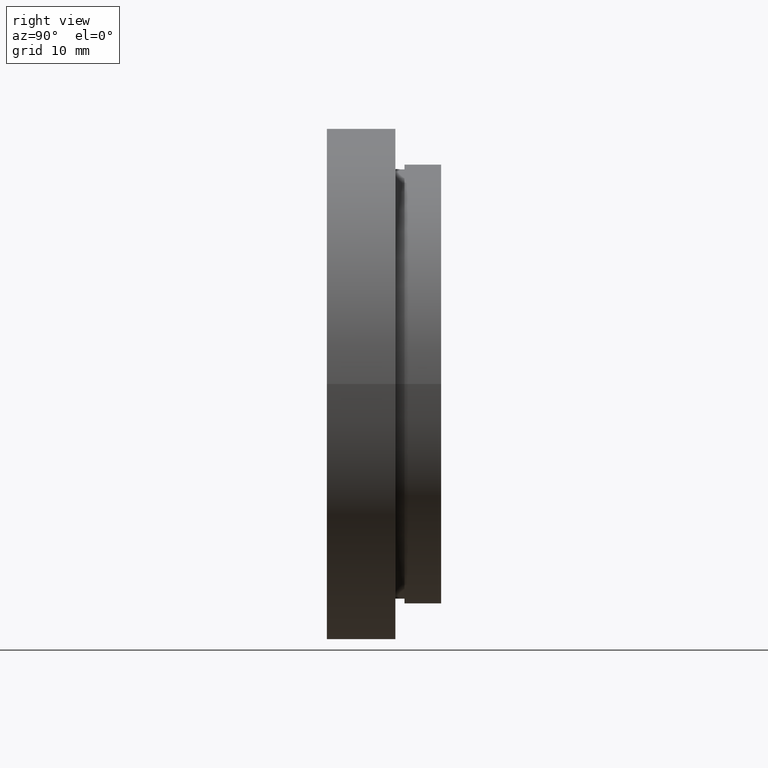
[diagram: clean part render]
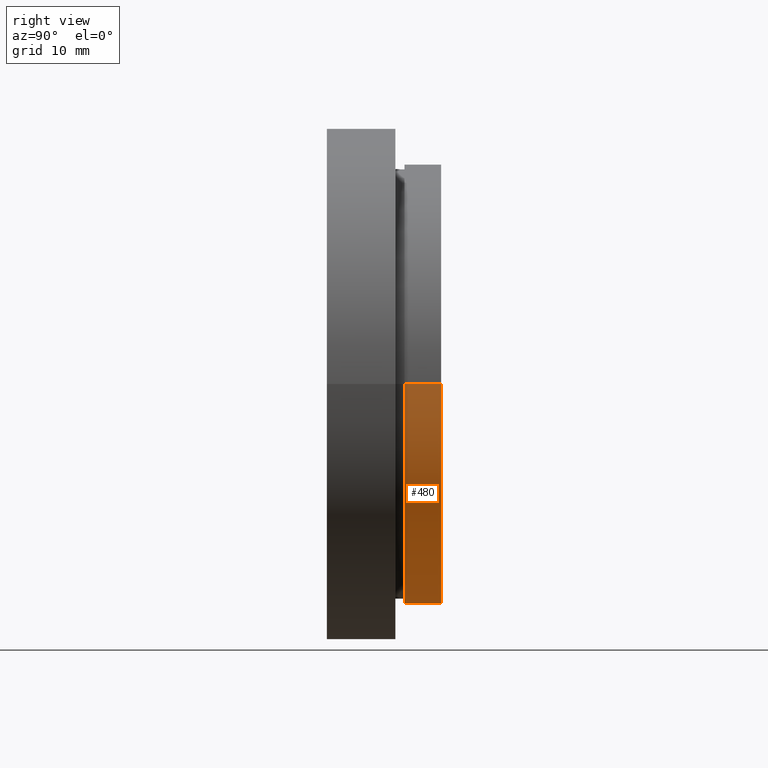
[diagram: same view with one face highlighted and labeled with its STEP entity id]
A machine part, right view. The second image highlights one B-rep face of the part: STEP entity #480.
In plain terms, the highlighted cylindrical surface (partial cylindrical patch) has radius 24.01 mm, axis along (-0, 1, -0).
Its self-contained STEP definition (entity closure, byte-faithful):
#20 = CARTESIAN_POINT ( 'NONE',  ( -24.01000000000000200, 12.49999999999999300, 0.0000000000000000000 ) ) ;
#27 = DIRECTION ( 'NONE',  ( -1.224646799147351000E-016, 1.000000000000000000, -0.0000000000000000000 ) ) ;
#38 = EDGE_CURVE ( 'NONE', #297, #193, #513, .T. ) ;
#62 = CIRCLE ( 'NONE', #383, 24.01000000000000200 ) ;
#80 = DIRECTION ( 'NONE',  ( -1.000000000000000000, -1.445000812975266200E-016, 0.0000000000000000000 ) ) ;
#90 = DIRECTION ( 'NONE',  ( -1.224646799147351000E-016, 1.000000000000000000, -0.0000000000000000000 ) ) ;
#93 = DIRECTION ( 'NONE',  ( -1.224646799147351000E-016, 1.000000000000000000, -0.0000000000000000000 ) ) ;
#96 = ORIENTED_EDGE ( 'NONE', *, *, #326, .T. ) ;
#127 = CARTESIAN_POINT ( 'NONE',  ( 1.026991039163387900E-015, 8.499999999999996400, 0.0000000000000000000 ) ) ;
#147 = DIRECTION ( 'NONE',  ( -1.000000000000000000, -1.445000812975266200E-016, 0.0000000000000000000 ) ) ;
#160 = CARTESIAN_POINT ( 'NONE',  ( 24.01000000000000200, 12.50000000000000000, 2.940376964752795100E-015 ) ) ;
#193 = VERTEX_POINT ( 'NONE', #20 ) ;
#253 = CIRCLE ( 'NONE', #426, 24.01000000000000200 ) ;
#268 = EDGE_LOOP ( 'NONE', ( #576, #96, #556, #583 ) ) ;
#294 = CARTESIAN_POINT ( 'NONE',  ( -24.01000000000000200, 16.88601823708207300, 0.0000000000000000000 ) ) ;
#297 = VERTEX_POINT ( 'NONE', #508 ) ;
#308 = FACE_OUTER_BOUND ( 'NONE', #268, .T. ) ;
#326 = EDGE_CURVE ( 'NONE', #523, #297, #62, .T. ) ;
#327 = LINE ( 'NONE', #517, #427 ) ;
#363 = VECTOR ( 'NONE', #392, 1000.000000000000000 ) ;
#365 = AXIS2_PLACEMENT_3D ( 'NONE', #444, #93, #147 ) ;
#383 = AXIS2_PLACEMENT_3D ( 'NONE', #127, #423, #80 ) ;
#387 = DIRECTION ( 'NONE',  ( -1.000000000000000000, -1.445000812975266200E-016, 0.0000000000000000000 ) ) ;
#392 = DIRECTION ( 'NONE',  ( -1.224646799147351000E-016, 1.000000000000000000, -0.0000000000000000000 ) ) ;
#400 = EDGE_CURVE ( 'NONE', #523, #567, #327, .T. ) ;
#423 = DIRECTION ( 'NONE',  ( -1.224646799147351000E-016, 1.000000000000000000, -0.0000000000000000000 ) ) ;
#426 = AXIS2_PLACEMENT_3D ( 'NONE', #443, #90, #387 ) ;
#427 = VECTOR ( 'NONE', #27, 1000.000000000000000 ) ;
#443 = CARTESIAN_POINT ( 'NONE',  ( 5.371323195044475300E-016, 12.49999999999999600, 0.0000000000000000000 ) ) ;
#444 = CARTESIAN_POINT ( 'NONE',  ( 0.0000000000000000000, 16.88601823708207700, 0.0000000000000000000 ) ) ;
#450 = CARTESIAN_POINT ( 'NONE',  ( 24.01000000000000200, 8.500000000000000000, 2.940376964752795100E-015 ) ) ;
#457 = EDGE_CURVE ( 'NONE', #567, #193, #253, .T. ) ;
#480 = ADVANCED_FACE ( 'NONE', ( #308 ), #526, .T. ) ;
#508 = CARTESIAN_POINT ( 'NONE',  ( -24.01000000000000200, 8.499999999999992900, 0.0000000000000000000 ) ) ;
#513 = LINE ( 'NONE', #294, #363 ) ;
#517 = CARTESIAN_POINT ( 'NONE',  ( 24.01000000000000200, 16.88601823708208000, 2.940376964752795100E-015 ) ) ;
#523 = VERTEX_POINT ( 'NONE', #450 ) ;
#526 = CYLINDRICAL_SURFACE ( 'NONE', #365, 24.01000000000000200 ) ;
#556 = ORIENTED_EDGE ( 'NONE', *, *, #38, .T. ) ;
#567 = VERTEX_POINT ( 'NONE', #160 ) ;
#576 = ORIENTED_EDGE ( 'NONE', *, *, #400, .F. ) ;
#583 = ORIENTED_EDGE ( 'NONE', *, *, #457, .F. ) ;